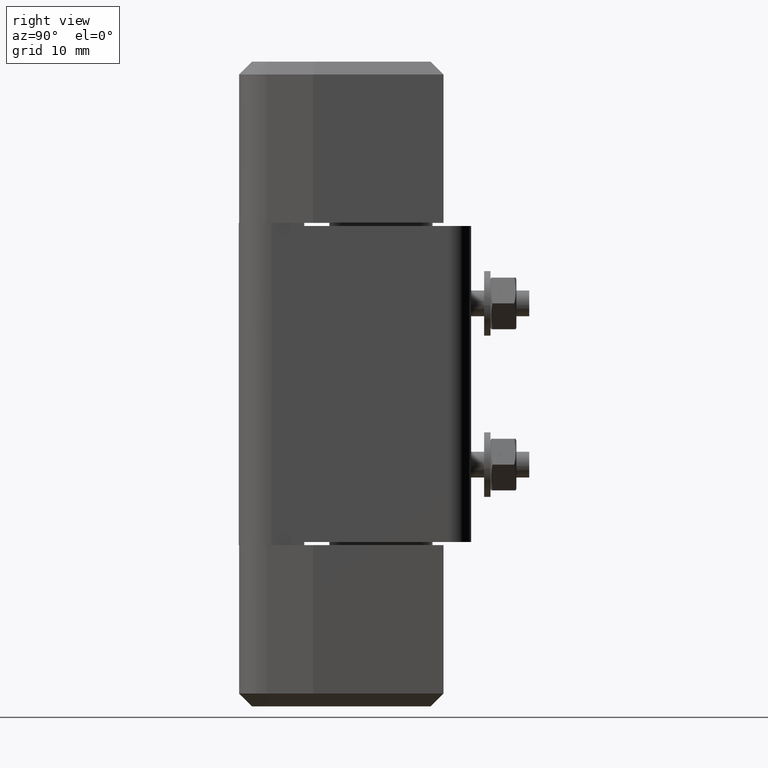
[diagram: clean part render]
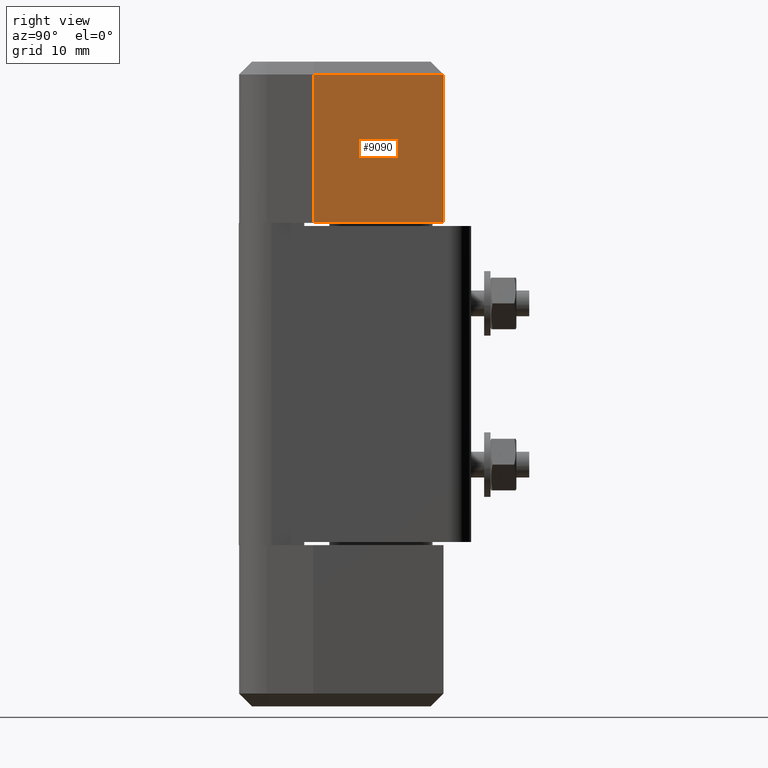
[diagram: same view with one face highlighted and labeled with its STEP entity id]
A machine part, right view. The second image highlights one B-rep face of the part: STEP entity #9090.
In plain terms, the highlighted face is a freeform B-spline surface patch.
Its self-contained STEP definition (entity closure, byte-faithful):
#8629=CARTESIAN_POINT('',(6.050000261235900,26.700001268181950,98.000004749745202));
#8630=VERTEX_POINT('',#8629);
#8651=CARTESIAN_POINT('',(6.050000261235900,6.491960666933440,98.000004749745202));
#8652=VERTEX_POINT('',#8651);
#8658=CARTESIAN_POINT('',(6.050000261235900,26.700001268181950,98.000004749745202));
#8659=CARTESIAN_POINT('',(6.050000261235900,6.491960666933440,98.000004749745202));
#8660=QUASI_UNIFORM_CURVE('',1,(#8658,#8659),.UNSPECIFIED.,.F.,.U.);
#8661=EDGE_CURVE('',#8630,#8652,#8660,.T.);
#8867=CARTESIAN_POINT('',(6.050000261235900,26.700001268181950,75.000003562310297));
#8868=VERTEX_POINT('',#8867);
#8869=CARTESIAN_POINT('',(6.050000261235900,26.700001268181950,75.000003562310297));
#8870=CARTESIAN_POINT('',(6.050000261235900,26.700001268181950,98.000004749745202));
#8871=QUASI_UNIFORM_CURVE('',1,(#8869,#8870),.UNSPECIFIED.,.F.,.U.);
#8872=EDGE_CURVE('',#8868,#8630,#8871,.T.);
#8921=CARTESIAN_POINT('',(6.050000261235900,6.491960666933440,75.000003562310297));
#8922=VERTEX_POINT('',#8921);
#8923=CARTESIAN_POINT('',(6.050000261235900,26.700001268181950,75.000003562310297));
#8924=CARTESIAN_POINT('',(6.050000261235900,6.491960666933440,75.000003562310297));
#8925=QUASI_UNIFORM_CURVE('',1,(#8923,#8924),.UNSPECIFIED.,.F.,.U.);
#8926=EDGE_CURVE('',#8868,#8922,#8925,.T.);
#9068=CARTESIAN_POINT('',(6.050000261235900,6.491960666933440,75.000003562310297));
#9069=CARTESIAN_POINT('',(6.050000261235900,6.491960666933440,98.000004749745202));
#9070=QUASI_UNIFORM_CURVE('',1,(#9068,#9069),.UNSPECIFIED.,.F.,.U.);
#9071=EDGE_CURVE('',#8922,#8652,#9070,.T.);
#9079=CARTESIAN_POINT('',(6.050000261235900,5.482568960566866,73.851149579068235));
#9080=CARTESIAN_POINT('',(6.050000261235900,5.482568960566866,99.148857293535031));
#9081=CARTESIAN_POINT('',(6.050000261235900,27.709391890504751,73.851149579068235));
#9082=CARTESIAN_POINT('',(6.050000261235900,27.709391890504751,99.148857293535031));
#9083=B_SPLINE_SURFACE_WITH_KNOTS('',1,1,((#9079,#9081),(#9080,#9082)),.UNSPECIFIED.,.F.,.F.,.U.,(2,2),(2,2),(0.0,25.297707714466799),(0.0,22.226822929937882),.UNSPECIFIED.);
#9084=ORIENTED_EDGE('',*,*,#8872,.T.);
#9085=ORIENTED_EDGE('',*,*,#8661,.T.);
#9086=ORIENTED_EDGE('',*,*,#9071,.F.);
#9087=ORIENTED_EDGE('',*,*,#8926,.F.);
#9088=EDGE_LOOP('',(#9084,#9085,#9086,#9087));
#9089=FACE_OUTER_BOUND('',#9088,.T.);
#9090=ADVANCED_FACE('',(#9089),#9083,.F.);